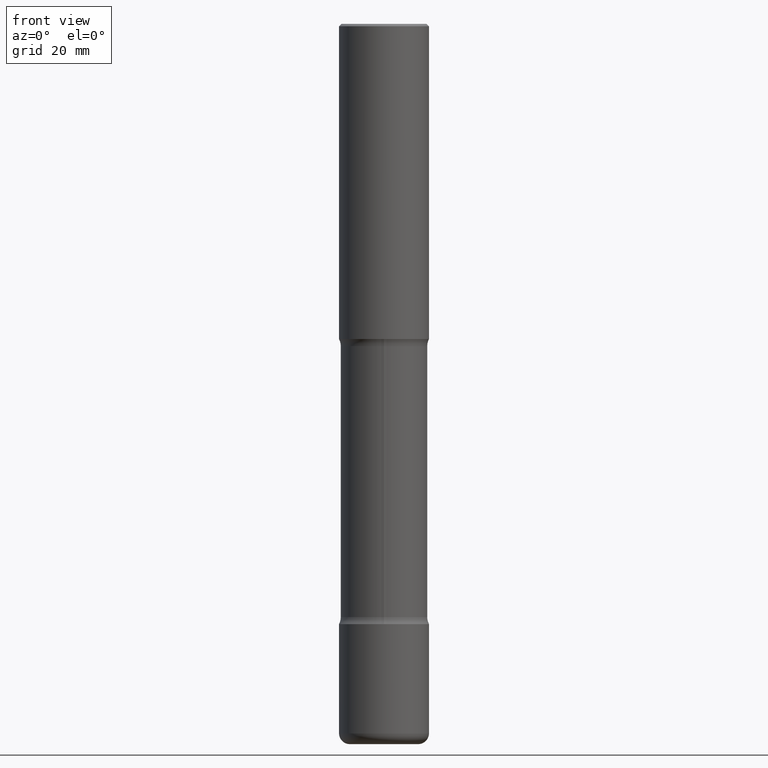
[diagram: clean part render]
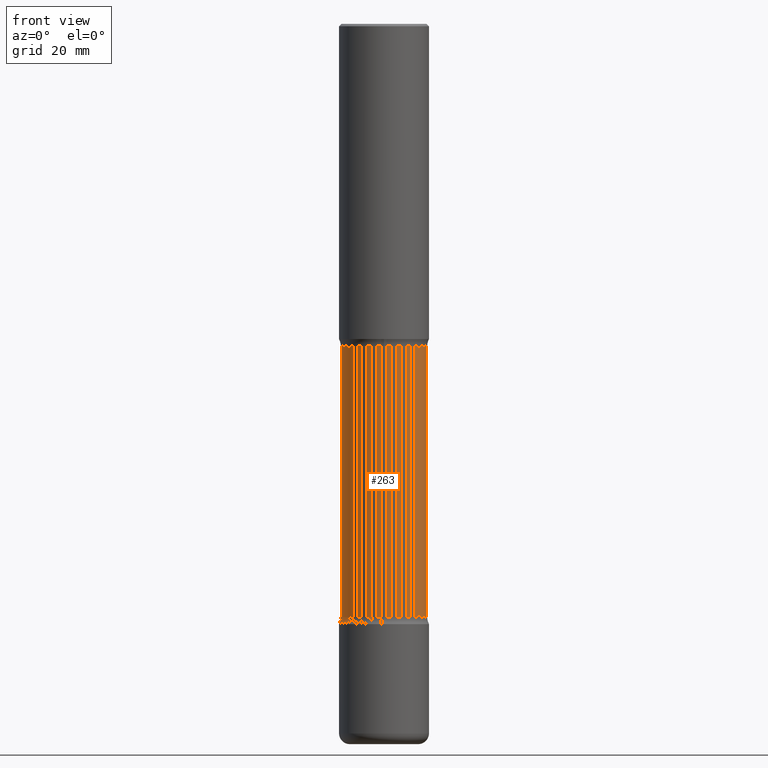
[diagram: same view with one face highlighted and labeled with its STEP entity id]
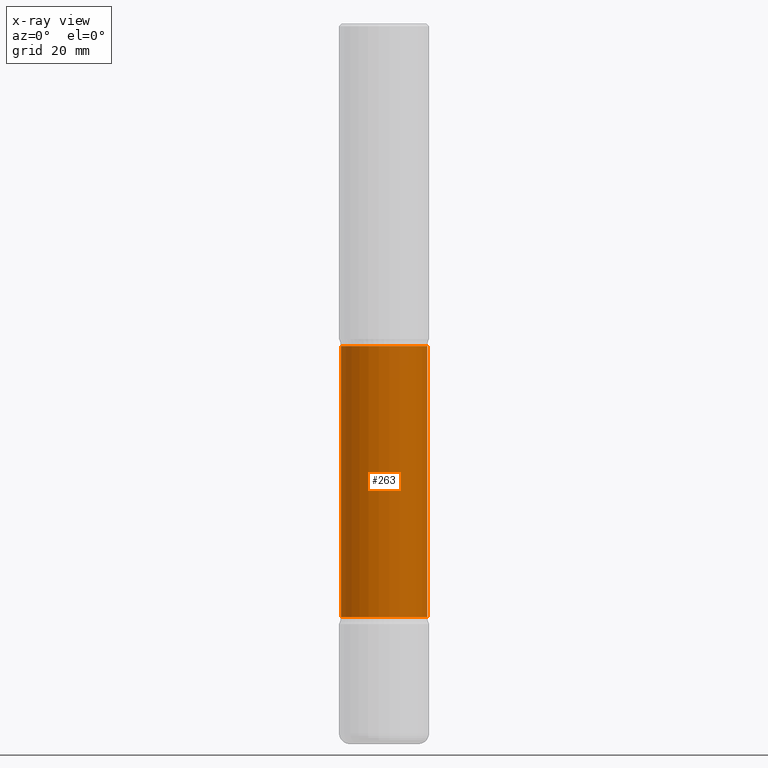
[diagram: x-ray of the same camera — body ghosted, the highlighted face saturated]
A machine part, front view. The second image highlights one B-rep face of the part: STEP entity #263.
The next image is the same camera in x-ray: the body ghosted, the highlighted face saturated — about 0% of this face is hidden behind the body in this view.
In plain terms, the highlighted cylindrical surface (partial cylindrical patch) has radius 9.144 mm, axis along (-0, 0, 1).
Its self-contained STEP definition (entity closure, byte-faithful):
#21 = VERTEX_POINT ( 'NONE', #417 ) ;
#25 = DIRECTION ( 'NONE',  ( -2.445468806185136597E-29, 3.491481338843145583E-15, 1.000000000000000000 ) ) ;
#27 = FACE_OUTER_BOUND ( 'NONE', #257, .T. ) ;
#50 = VECTOR ( 'NONE', #433, 39.37007874015748143 ) ;
#51 = DIRECTION ( 'NONE',  ( 1.000000000000000000, -6.982962677686263555E-15, 0.000000000000000000 ) ) ;
#52 = VECTOR ( 'NONE', #394, 39.37007874015748143 ) ;
#128 = CYLINDRICAL_SURFACE ( 'NONE', #797, 0.3599999999999999867 ) ;
#135 = AXIS2_PLACEMENT_3D ( 'NONE', #588, #25, #51 ) ;
#162 = CARTESIAN_POINT ( 'NONE',  ( -0.3600000000000002642, -1.474251453077752871E-14, -4.940628289564810594 ) ) ;
#172 = ORIENTED_EDGE ( 'NONE', *, *, #770, .F. ) ;
#182 = DIRECTION ( 'NONE',  ( 1.000000000000000000, -6.982962677686269077E-15, 0.000000000000000000 ) ) ;
#204 = CARTESIAN_POINT ( 'NONE',  ( 6.419355616235984688E-29, -9.165138514463258190E-15, -2.625000000000000444 ) ) ;
#217 = CARTESIAN_POINT ( 'NONE',  ( 0.3599999999999997646, -1.188630029746997855E-14, -2.684371710435190739 ) ) ;
#251 = CARTESIAN_POINT ( 'NONE',  ( 0.3599999999999999867, -1.167900507843031484E-14, -2.625000000000000444 ) ) ;
#257 = EDGE_LOOP ( 'NONE', ( #172, #618, #315, #500 ) ) ;
#263 = ADVANCED_FACE ( 'NONE', ( #27 ), #128, .T. ) ;
#271 = EDGE_CURVE ( 'NONE', #484, #641, #373, .T. ) ;
#315 = ORIENTED_EDGE ( 'NONE', *, *, #527, .T. ) ;
#321 = EDGE_CURVE ( 'NONE', #338, #21, #343, .T. ) ;
#338 = VERTEX_POINT ( 'NONE', #162 ) ;
#343 = CIRCLE ( 'NONE', #135, 0.3600000000000002642 ) ;
#373 = CIRCLE ( 'NONE', #385, 0.3599999999999997646 ) ;
#385 = AXIS2_PLACEMENT_3D ( 'NONE', #570, #451, #506 ) ;
#394 = DIRECTION ( 'NONE',  ( -2.445468806185136877E-29, 3.491481338843145188E-15, 1.000000000000000000 ) ) ;
#408 = CARTESIAN_POINT ( 'NONE',  ( -0.3599999999999999867, -6.607184665726898404E-15, -2.625000000000000444 ) ) ;
#417 = CARTESIAN_POINT ( 'NONE',  ( 0.3600000000000002642, -1.976397803914312281E-14, -4.940628289564810594 ) ) ;
#433 = DIRECTION ( 'NONE',  ( -2.445468806185136877E-29, 3.491481338843145188E-15, 1.000000000000000000 ) ) ;
#451 = DIRECTION ( 'NONE',  ( -2.445468806185136597E-29, 3.491481338843145583E-15, 1.000000000000000000 ) ) ;
#484 = VERTEX_POINT ( 'NONE', #554 ) ;
#500 = ORIENTED_EDGE ( 'NONE', *, *, #271, .F. ) ;
#506 = DIRECTION ( 'NONE',  ( 1.000000000000000000, -6.982962677686267499E-15, 0.000000000000000000 ) ) ;
#527 = EDGE_CURVE ( 'NONE', #21, #641, #804, .T. ) ;
#554 = CARTESIAN_POINT ( 'NONE',  ( -0.3599999999999997646, -6.657541570064724674E-15, -2.684371710435190739 ) ) ;
#555 = DIRECTION ( 'NONE',  ( -2.445468806185136597E-29, 3.491481338843145583E-15, 1.000000000000000000 ) ) ;
#570 = CARTESIAN_POINT ( 'NONE',  ( 6.564547282075098274E-29, -9.372433733502923486E-15, -2.684371710435190739 ) ) ;
#588 = CARTESIAN_POINT ( 'NONE',  ( 1.208215236508657052E-28, -1.725011147517606617E-14, -4.940628289564810594 ) ) ;
#618 = ORIENTED_EDGE ( 'NONE', *, *, #321, .T. ) ;
#641 = VERTEX_POINT ( 'NONE', #217 ) ;
#648 = LINE ( 'NONE', #408, #52 ) ;
#770 = EDGE_CURVE ( 'NONE', #338, #484, #648, .T. ) ;
#797 = AXIS2_PLACEMENT_3D ( 'NONE', #204, #555, #182 ) ;
#804 = LINE ( 'NONE', #251, #50 ) ;